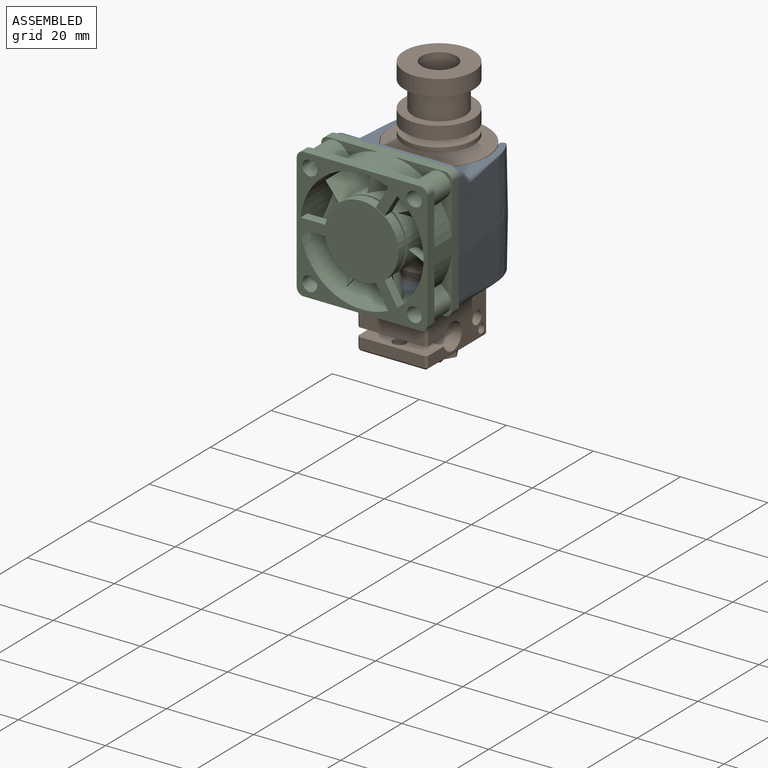
[diagram: assembled view]
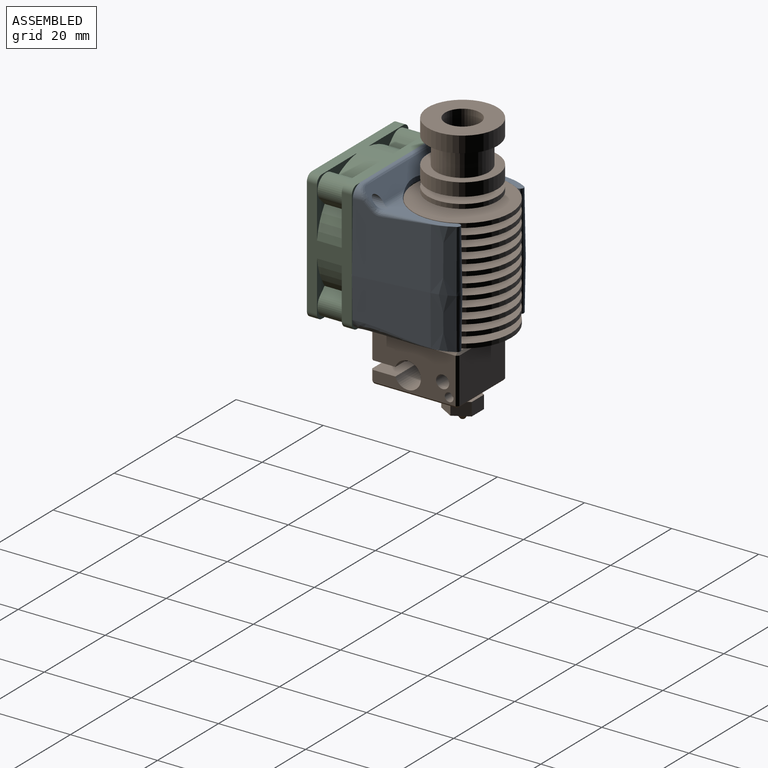
[diagram: assembled view, second angle]
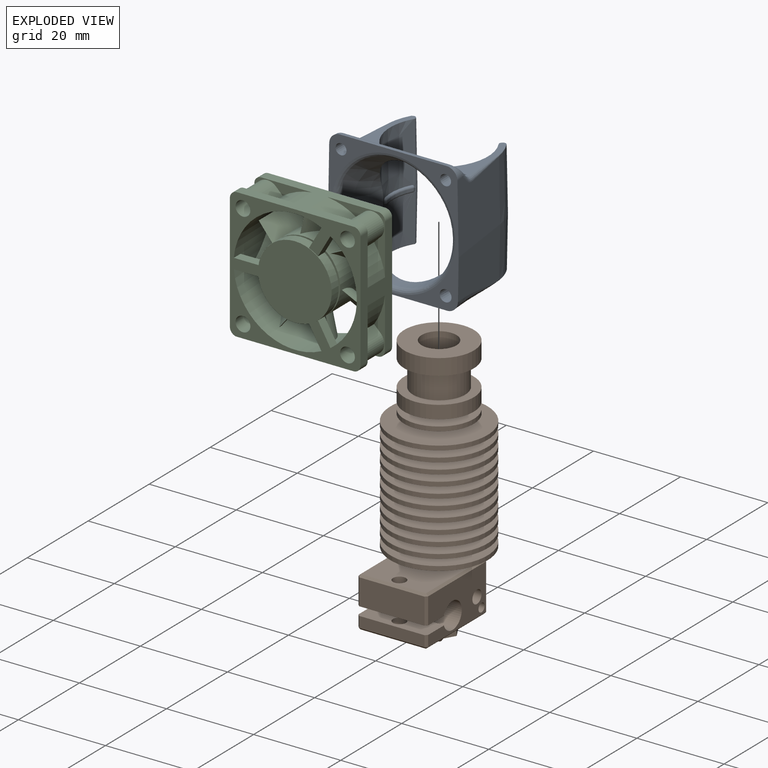
[diagram: exploded view]
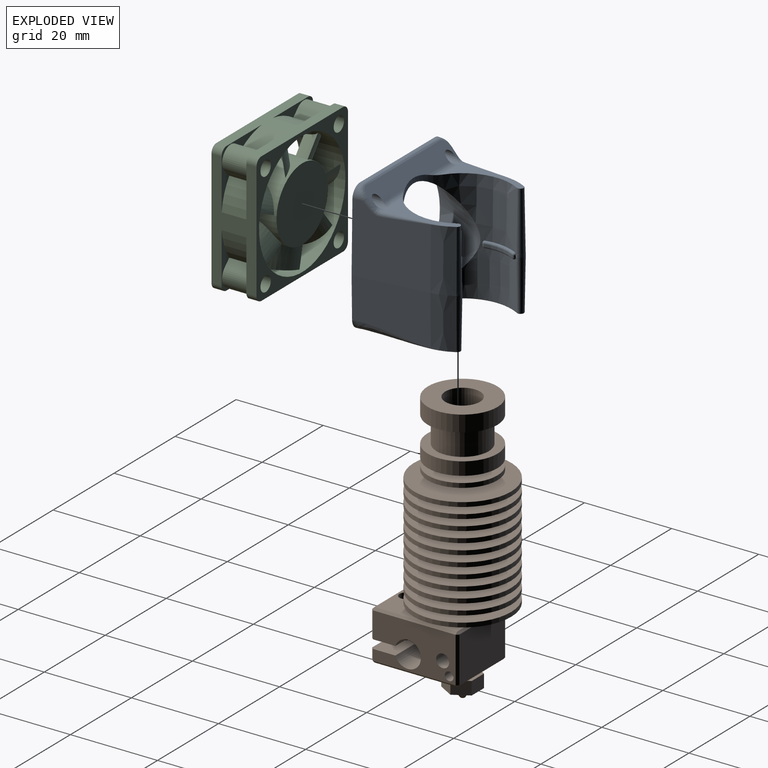
[diagram: exploded view, second angle]
ASSEMBLY  parts=3 mates=2
PART A: 92 faces, bbox 22.4x30.1x30.1 mm
  f0: sphere r=0.5mm, area 0.4mm2, adj f1,f3,f4
  f1: cylinder r=0.5mm len=0.5mm, axis (-0.26,0,0.97), area 0mm2, adj f0,f2,f7,f78
  f2: plane 7.43x1.25mm, normal (0,-1,0), area 0.1mm2, adj f1,f3,f13,f78
  f3: torus R=11mm, axis (0,-1,0), area 5.8mm2, adj f0,f2,f14,f63
  f4: cylinder r=0.5mm len=0.59mm, axis (0,-1,0), area 0.4mm2, adj f0,f5,f7,f63
  f5: sphere r=0.5mm, area 0.4mm2, adj f4,f6,f8
  f6: cylinder r=0.5mm len=0.5mm, axis (0.26,0,-0.97), area 0mm2, adj f5,f7,f62,f64
  f7: plane 0.5x0.02mm, normal (-0.97,0,-0.26), area 0mm2, adj f1,f4,f6,f64,f78
  f8: torus R=11mm, axis (0,-1,0), area 5.8mm2, adj f5,f10,f62,f63
  f9: cylinder r=0.5mm len=0.5mm, axis (-0.5,0,-0.87), area 0mm2, adj f10,f12,f62,f64
  f10: sphere r=0.5mm, area 0.4mm2, adj f8,f9,f11
  f11: cylinder r=0.5mm len=0.66mm, axis (0,-1,0), area 0.4mm2, adj f10,f12,f14,f63
  f12: plane 0.5x0.01mm, normal (0.87,0,-0.5), area 0mm2, adj f9,f11,f13,f76,f85
  f13: cylinder r=0.5mm len=0.5mm, axis (0.5,0,0.87), area 0mm2, adj f2,f12,f14,f78
  f14: sphere r=0.5mm, area 0.4mm2, adj f3,f11,f13
  f15: cylinder r=0.5mm len=0.5mm, axis (0.26,0,0.97), area 0mm2, adj f16,f19,f60,f64
  f16: sphere r=0.5mm, area 0.4mm2, adj f15,f17,f18
  f17: torus R=11mm, axis (0,-1,0), area 5.8mm2, adj f16,f24,f60,f61
  f18: cylinder r=0.5mm len=0.59mm, axis (0,-1,0), area 0.4mm2, adj f16,f19,f21,f61
  f19: plane 0.5x0.02mm, normal (-0.97,0,0.26), area 0mm2, adj f15,f18,f20,f64,f78
  f20: cylinder r=0.5mm len=0.5mm, axis (-0.26,0,-0.97), area 0mm2, adj f19,f21,f23,f78
  f21: sphere r=0.5mm, area 0.4mm2, adj f18,f20,f22
  f22: torus R=11mm, axis (0,-1,0), area 5.8mm2, adj f21,f23,f28,f61
  f23: plane 7.43x1.25mm, normal (0,-1,0), area 0.1mm2, adj f20,f22,f29,f78
  f24: sphere r=0.5mm, area 0.4mm2, adj f17,f25,f27
  f25: cylinder r=0.5mm len=0.5mm, axis (-0.5,0,0.87), area 0mm2, adj f24,f26,f60,f64
  f26: plane 0.5x0.01mm, normal (0.87,0,0.5), area 0mm2, adj f25,f27,f29,f50,f83
  f27: cylinder r=0.5mm len=0.66mm, axis (0,-1,0), area 0.4mm2, adj f24,f26,f28,f61
  f28: sphere r=0.5mm, area 0.4mm2, adj f22,f27,f29
  f29: cylinder r=0.5mm len=0.5mm, axis (0.5,0,-0.87), area 0mm2, adj f23,f26,f28,f78
  f30: bspline ~1.03x0.42mm, area 0mm2, adj f31,f50,f69
  f31: bspline ~4.8x1.62mm, area 0.7mm2, adj f30,f32,f49,f69
  f32: bspline ~10.77x1.56mm, area 9.5mm2, adj f31,f33,f48,f69
  f33: bspline ~2.09x1.5mm, area 2.6mm2, adj f32,f34,f48,f68
  f34: bspline ~2.32x2.23mm, area 3.4mm2, adj f33,f35,f48,f51
  f35: bspline ~2.46x2.35mm, area 3.6mm2, adj f34,f36,f47,f51
  f36: extruded ~24.26x0.71mm, area 19mm2, adj f35,f37,f46,f51
  f37: bspline ~2.46x2.34mm, area 3.6mm2, adj f36,f38,f45,f51
  f38: bspline ~2.32x2.23mm, area 3.4mm2, adj f37,f39,f44,f51
  f39: bspline ~2.09x1.47mm, area 2.6mm2, adj f38,f40,f44,f65
  f40: bspline ~10.77x1.56mm, area 9.5mm2, adj f39,f41,f44,f73
  f41: bspline ~4.8x1.62mm, area 0.7mm2, adj f40,f42,f43,f73
  f42: bspline ~1.03x0.42mm, area 0mm2, adj f41,f73,f76
  f43: cone r=13mm half-angle=1deg, axis (0,-1,0), area 72.5mm2, adj f41,f44,f76,f89
  f44: plane 16.63x15.79mm, normal (0.13,0.02,0.99), area 236mm2, adj f38,f39,f40,f43,f45,f80,f86
  f45: cylinder r=2.5mm len=2.76mm, axis (0.99,0,-0.13), area 4.5mm2, adj f37,f44,f46,f80
  f46: plane 24.41x0.59mm, normal (0,1,0), area 14.3mm2, adj f36,f45,f47,f80
  f47: cylinder r=2.5mm len=2.76mm, axis (-0.99,0,-0.13), area 4.5mm2, adj f35,f46,f48,f80
  f48: plane 16.63x15.79mm, normal (0.13,0.02,-0.99), area 236mm2, adj f32,f33,f34,f47,f49,f80,f81
  f49: cone r=13mm half-angle=1deg, axis (0,-1,0), area 72.5mm2, adj f31,f48,f50,f82
  f50: cone r=1mm half-angle=1deg, axis (0,-1,0), area 39.2mm2, adj f26,f30,f49,f64,f69,f83
  f51: plane 26.98x3.13mm, normal (0.71,0.71,0), area 103.4mm2, adj f34,f35,f36,f37,f38,f64,f65,f66
  f52: bspline ~16.92x2.78mm, area 38.7mm2, adj f53,f59,f80,f81
  f53: bspline ~4.82x1.7mm, area 1.1mm2, adj f52,f54,f59,f82
  f54: bspline ~1.54x1.3mm, area 0.4mm2, adj f53,f55,f59,f83
  f55: bspline ~23.08x17.12mm, area 7.3mm2, adj f54,f56,f59,f78
  f56: bspline ~1.54x1.3mm, area 0.4mm2, adj f55,f57,f59,f85
  f57: bspline ~4.82x1.7mm, area 0.9mm2, adj f56,f58,f59,f89
  f58: bspline ~16.92x2.78mm, area 37.1mm2, adj f57,f59,f80,f86
  f59: plane 25.11x21.71mm, normal (0,-1,0), area 186mm2, adj f52,f53,f54,f55,f56,f57,f58,f80
  f60: plane 7.43x1.25mm, normal (0,1,0), area 0.1mm2, adj f15,f17,f25,f64
  f61: cylinder r=10.5mm len=7.09mm, axis (0,-1,0), area 3.6mm2, adj f17,f18,f22,f27
  f62: plane 7.43x1.25mm, normal (0,1,0), area 0.1mm2, adj f6,f8,f9,f64
  f63: cylinder r=10.5mm len=7.09mm, axis (0,-1,0), area 3.6mm2, adj f3,f4,f8,f11
  f64: cone r=11.28mm half-angle=1deg, axis (0,1,0), area 366.4mm2, adj f6,f7,f9,f15,f19,f25,f50,f51
  f65: cylinder r=2mm len=1.41mm, axis (0,0,1), area 0.6mm2, adj f39,f51,f70,f73
  f66: cylinder r=2mm len=7.6mm, axis (0,0,1), area 9.4mm2, adj f51,f64,f70,f73
  f67: cylinder r=2mm len=7.6mm, axis (0,0,1), area 9.4mm2, adj f51,f64,f69,f74
  f68: cylinder r=2mm len=1.41mm, axis (0,0,1), area 0.6mm2, adj f33,f51,f69,f74
  f69: plane 15.93x6.6mm, normal (0,1,0), area 36.7mm2, adj f30,f31,f32,f50,f64,f67,f68,f74
  f70: cone r=1.25mm half-angle=1deg, axis (-1,0,0), area 31.8mm2, adj f51,f65,f66,f73,f77,f80
  f71: bspline ~28.59x17.93mm, area 49.8mm2, adj f72,f79,f80,f84
  f72: bspline ~3.21x1.31mm, area 3.9mm2, adj f71,f79,f80,f84
  f73: plane 15.93x6.6mm, normal (0,1,0), area 36.7mm2, adj f40,f41,f42,f64,f65,f66,f70,f76
  f74: cone r=1.25mm half-angle=1deg, axis (-1,0,0), area 31.8mm2, adj f51,f67,f68,f69,f75,f80
  f75: plane 1.12x0.15mm, normal (-1,0,0), area 0.1mm2, adj f69,f74
  f76: cone r=1mm half-angle=1deg, axis (0,-1,0), area 39.2mm2, adj f12,f42,f43,f64,f73,f85
  f77: plane 1.12x0.15mm, normal (-1,0,0), area 0.1mm2, adj f70,f73
  f78: cone r=11.1mm half-angle=1deg, axis (0,-1,0), area 322.5mm2, adj f1,f2,f7,f13,f19,f20,f23,f29
  f79: bspline ~27.81x11.6mm, area 55.3mm2, adj f71,f72,f80,f84
  f80: plane 30.13x30.13mm, normal (-1,0,0), area 228.1mm2, adj f44,f45,f46,f47,f48,f52,f58,f59
  f81: plane 16.63x11.51mm, normal (0.13,-0.02,-0.99), area 172mm2, adj f48,f52,f80,f82
  f82: cone r=13mm half-angle=1deg, axis (0,1,0), area 59.4mm2, adj f49,f53,f81,f83
  f83: cone r=1mm half-angle=1deg, axis (0,1,0), area 32.9mm2, adj f26,f50,f54,f78,f82
  f84: bspline ~26.56x26.52mm, area 535.8mm2, adj f64,f71,f72,f78,f79
  f85: cone r=1mm half-angle=1deg, axis (0,1,0), area 32.9mm2, adj f12,f56,f76,f78,f89
  f86: plane 16.63x11.57mm, normal (0.13,-0.02,0.99), area 173mm2, adj f44,f58,f80,f89
  f87: cone r=1.25mm half-angle=1deg, axis (-1,0,0), area 49.1mm2, adj f80,f90
  f88: cone r=1.25mm half-angle=1deg, axis (-1,0,0), area 45.2mm2, adj f80,f91
  f89: cone r=13mm half-angle=1deg, axis (0,1,0), area 59.6mm2, adj f43,f57,f85,f86
  f90: plane 2.5x2.5mm, normal (-1,0,0), area 4.9mm2, adj f87
  f91: plane 2.29x2.29mm, normal (-1,0,0), area 4.1mm2, adj f88
PART B: 111 faces, bbox 26.7x22.3x62.3 mm
  f0: plane 0.5x0.5mm, normal (-0.58,0.58,0.58), area 0.2mm2, adj f18,f20,f21
  f1: plane 0.5x0.5mm, normal (0.58,0.58,0.58), area 0.2mm2, adj f4,f17,f20
  f2: plane 0.5x0.5mm, normal (-0.58,-0.58,0.58), area 0.2mm2, adj f6,f18,f19
  f3: plane 0.5x0.5mm, normal (0.58,0.58,-0.58), area 0.2mm2, adj f4,f9,f16
  f4: plane 10.5x0.5mm, normal (0.71,0.71,0), area 7.4mm2, adj f1,f3,f27,f51
  f5: plane 0.5x0.5mm, normal (0.58,-0.58,0.58), area 0.2mm2, adj f6,f11,f17
  f6: plane 19x0.5mm, normal (0,-0.71,0.71), area 13.4mm2, adj f2,f5,f22,f25
  f7: plane 0.5x0.5mm, normal (-0.58,0.58,-0.58), area 0.2mm2, adj f8,f9,f14
  f8: plane 2.5x0.5mm, normal (-0.71,0.71,0), area 1.8mm2, adj f7,f50,f51,f52
  f9: plane 19x0.5mm, normal (0,0.71,-0.71), area 13.4mm2, adj f3,f7,f26,f51
  f10: plane 0.5x0.5mm, normal (0.58,-0.58,-0.58), area 0.2mm2, adj f11,f15,f16
  f11: plane 10.5x0.5mm, normal (0.71,-0.71,0), area 7.4mm2, adj f5,f10,f22,f27
  f12: plane 0.5x0.5mm, normal (-0.58,-0.58,-0.58), area 0.2mm2, adj f13,f14,f15
  f13: plane 2.5x0.5mm, normal (-0.71,-0.71,0), area 1.8mm2, adj f12,f22,f50,f52
  f14: plane 15x0.5mm, normal (-0.71,0,-0.71), area 10.6mm2, adj f7,f12,f26,f52
  f15: plane 19x0.5mm, normal (0,-0.71,-0.71), area 13.4mm2, adj f10,f12,f22,f26
  f16: plane 15x0.5mm, normal (0.71,0,-0.71), area 10.6mm2, adj f3,f10,f26,f27
  f17: plane 15x0.5mm, normal (0.71,0,0.71), area 10.6mm2, adj f1,f5,f25,f27
  f18: plane 15x0.5mm, normal (-0.71,0,0.71), area 10.6mm2, adj f0,f2,f23,f25
  f19: plane 6x0.5mm, normal (-0.71,-0.71,0), area 4.2mm2, adj f2,f22,f23,f24
  f20: plane 19x0.5mm, normal (0,0.71,0.71), area 13.4mm2, adj f0,f1,f25,f51
  f21: plane 6x0.5mm, normal (-0.71,0.71,0), area 4.2mm2, adj f0,f23,f24,f51
  f22: plane 19x10.5mm, normal (0,-1,0), area 150.5mm2, adj f6,f11,f13,f15,f19,f24,f43,f47
  f23: plane 15x6mm, normal (-1,0,0), area 90mm2, adj f18,f19,f21,f24
  f24: plane 16x5.65mm, normal (0,0,-1), area 83mm2, adj f19,f21,f22,f23,f42,f49,f51
  f25: plane 19x15mm, normal (0,0,1), area 271.8mm2, adj f6,f17,f18,f20,f42,f53
  f26: plane 19x15mm, normal (0,0,-1), area 258.3mm2, adj f9,f14,f15,f16,f40,f41
  f27: plane 15x10.5mm, normal (1,0,0), area 157.5mm2, adj f4,f11,f16,f17
  f28: cylinder r=0.2mm len=3mm, axis (0,0,1), area 3.8mm2, adj f29,f30
  f29: plane 0.4x0.4mm, normal (0,0,-1), area 0.1mm2, adj f28
  f30: plane 1x1mm, normal (0,0,-1), area 0.7mm2, adj f28,f31
  f31: cone r=1.9mm half-angle=35deg, axis (0,0,1), area 18.4mm2, adj f30,f39
  f32: plane 8.08x7mm, normal (0,0,1), area 22.8mm2, adj f33,f34,f35,f36,f37,f38,f40
  f33: plane 3.5x3mm, normal (-0.5,-0.87,0), area 12.1mm2, adj f32,f34,f38,f39
  f34: plane 3.5x3mm, normal (0.5,-0.87,0), area 12.1mm2, adj f32,f33,f35,f39
  f35: plane 4.04x3mm, normal (1,0,0), area 12.1mm2, adj f32,f34,f36,f39
  f36: plane 3.5x3mm, normal (0.5,0.87,0), area 12.1mm2, adj f32,f35,f37,f39
  f37: plane 3.5x3mm, normal (-0.5,0.87,0), area 12.1mm2, adj f32,f36,f38,f39
  f38: plane 4.04x3mm, normal (-1,0,0), area 12.1mm2, adj f32,f33,f37,f39
  f39: plane 8.08x7mm, normal (0,0,-1), area 31.1mm2, adj f31,f33,f34,f35,f36,f37,f38
  f40: cylinder r=2.5mm len=5mm, axis (0,0,-1), area 15.7mm2, adj f26,f32
  f41: cylinder r=1.5mm len=3mm, axis (0,0,-1), area 28.3mm2, adj f26,f50
  f42: cylinder r=1.5mm len=6.5mm, axis (0,0,-1), area 61.3mm2, adj f24,f25
  f43: cylinder r=1mm len=2mm, axis (0,1,0), area 12.6mm2, adj f22,f44
  f44: plane 2x2mm, normal (0,-1,0), area 1.3mm2, adj f43,f45
  f45: cylinder r=0.78mm len=2.45mm, axis (0,1,0), area 11.9mm2, adj f44,f46
  f46: plane 1.55x1.55mm, normal (0,-1,0), area 1.9mm2, adj f45
  f47: cylinder r=1.5mm len=3.45mm, axis (0,1,0), area 32.5mm2, adj f22,f48
  f48: plane 3x3mm, normal (0,-1,0), area 7.1mm2, adj f47
  f49: cylinder r=3.02mm len=16mm, axis (0,1,0), area 271.5mm2, adj f22,f24,f50,f51
  f50: plane 16x5.65mm, normal (0,0,1), area 83mm2, adj f8,f13,f22,f41,f49,f51,f52
  f51: plane 19x10.5mm, normal (0,1,0), area 160.7mm2, adj f4,f8,f9,f20,f21,f24,f49,f50
  f52: plane 15x2.5mm, normal (-1,0,0), area 37.5mm2, adj f8,f13,f14,f50
  f53: cylinder r=1.4mm len=2.8mm, axis (0,0,-1), area 18.5mm2, adj f25,f110
  f54: cylinder r=4mm len=8mm, axis (0,0,-1), area 163.4mm2, adj f55,f56
  f55: plane 8x8mm, normal (0,0,1), area 50.3mm2, adj f54
  f56: plane 16x16mm, normal (0,0,1), area 150.8mm2, adj f54,f57
  f57: cylinder r=8mm len=16mm, axis (0,0,-1), area 186mm2, adj f56,f58
  f58: plane 16x16mm, normal (0,0,-1), area 88mm2, adj f57,f59
  f59: cylinder r=6mm len=12mm, axis (0,0,-1), area 226.2mm2, adj f58,f60
  f60: plane 16x16mm, normal (0,0,1), area 88mm2, adj f59,f61
  f61: cylinder r=8mm len=16mm, axis (0,0,-1), area 150.8mm2, adj f60,f62
  f62: plane 16x16mm, normal (0,0,-1), area 137.4mm2, adj f61,f63
  f63: cylinder r=4.5mm len=9mm, axis (0,0,-1), area 42.4mm2, adj f62,f64
  f64: plane 16x16mm, normal (0,0,1), area 137.4mm2, adj f63,f65
  f65: cylinder r=8mm len=16mm, axis (0,0,-1), area 50.3mm2, adj f64,f66
  f66: plane 16x16mm, normal (0,0,-1), area 137.4mm2, adj f65,f67
  f67: cylinder r=4.5mm len=9mm, axis (0,0,-1), area 42.4mm2, adj f66,f68
  f68: plane 22.3x22.3mm, normal (0,0,1), area 327mm2, adj f67,f69
  f69: cylinder r=11.15mm len=22.3mm, axis (0,0,-1), area 70.1mm2, adj f68,f70
  f70: plane 22.3x22.3mm, normal (0,0,-1), area 319.7mm2, adj f69,f71
  f71: cylinder r=4.75mm len=9.5mm, axis (0,0,-1), area 44.8mm2, adj f70,f72
  f72: plane 22.3x22.3mm, normal (0,0,1), area 319.7mm2, adj f71,f73
  f73: cylinder r=11.15mm len=22.3mm, axis (0,0,-1), area 70.1mm2, adj f72,f74
  f74: plane 22.3x22.3mm, normal (0,0,-1), area 312mm2, adj f73,f75
  f75: cylinder r=5mm len=10mm, axis (0,0,-1), area 47.1mm2, adj f74,f76
  f76: plane 22.3x22.3mm, normal (0,0,1), area 312mm2, adj f75,f77
  f77: cylinder r=11.15mm len=22.3mm, axis (0,0,-1), area 70.1mm2, adj f76,f78
  f78: plane 22.3x22.3mm, normal (0,0,-1), area 304mm2, adj f77,f79
  f79: cylinder r=5.25mm len=10.5mm, axis (0,0,-1), area 49.5mm2, adj f78,f80
  f80: plane 22.3x22.3mm, normal (0,0,1), area 304mm2, adj f79,f81
  f81: cylinder r=11.15mm len=22.3mm, axis (0,0,-1), area 70.1mm2, adj f80,f82
  f82: plane 22.3x22.3mm, normal (0,0,-1), area 295.5mm2, adj f81,f83
  f83: cylinder r=5.5mm len=11mm, axis (0,0,-1), area 51.8mm2, adj f82,f84
  f84: plane 22.3x22.3mm, normal (0,0,1), area 295.5mm2, adj f83,f85
  f85: cylinder r=11.15mm len=22.3mm, axis (0,0,-1), area 70.1mm2, adj f84,f86
  f86: plane 22.3x22.3mm, normal (0,0,-1), area 286.7mm2, adj f85,f87
  f87: cylinder r=5.75mm len=11.5mm, axis (0,0,-1), area 54.2mm2, adj f86,f88
  f88: plane 22.3x22.3mm, normal (0,0,1), area 286.7mm2, adj f87,f89
  f89: cylinder r=11.15mm len=22.3mm, axis (0,0,-1), area 70.1mm2, adj f88,f90
  f90: plane 22.3x22.3mm, normal (0,0,-1), area 277.5mm2, adj f89,f91
  f91: cylinder r=6mm len=12mm, axis (0,0,-1), area 56.5mm2, adj f90,f92
  f92: plane 22.3x22.3mm, normal (0,0,1), area 277.5mm2, adj f91,f93
  f93: cylinder r=11.15mm len=22.3mm, axis (0,0,-1), area 70.1mm2, adj f92,f94
  f94: plane 22.3x22.3mm, normal (0,0,-1), area 267.9mm2, adj f93,f95
  f95: cylinder r=6.25mm len=12.5mm, axis (0,0,-1), area 58.9mm2, adj f94,f96
  f96: plane 22.3x22.3mm, normal (0,0,1), area 267.9mm2, adj f95,f97
  f97: cylinder r=11.15mm len=22.3mm, axis (0,0,-1), area 70.1mm2, adj f96,f98
  f98: plane 22.3x22.3mm, normal (0,0,-1), area 257.8mm2, adj f97,f99
  f99: cylinder r=6.5mm len=13mm, axis (0,0,-1), area 61.3mm2, adj f98,f100
  f100: plane 22.3x22.3mm, normal (0,0,1), area 257.8mm2, adj f99,f101
  f101: cylinder r=11.15mm len=22.3mm, axis (0,0,-1), area 70.1mm2, adj f100,f102
  f102: plane 22.3x22.3mm, normal (0,0,-1), area 247.4mm2, adj f101,f103
  f103: cylinder r=6.75mm len=13.5mm, axis (0,0,-1), area 63.6mm2, adj f102,f104
  f104: plane 22.3x22.3mm, normal (0,0,1), area 247.4mm2, adj f103,f105
  f105: cylinder r=11.15mm len=22.3mm, axis (0,0,-1), area 70.1mm2, adj f104,f106
  f106: plane 22.3x22.3mm, normal (0,0,-1), area 236.6mm2, adj f105,f107
  f107: cylinder r=7mm len=14mm, axis (0,0,-1), area 66mm2, adj f106,f108
  f108: plane 22.3x22.3mm, normal (0,0,1), area 236.6mm2, adj f107,f109
  f109: cylinder r=11.15mm len=22.3mm, axis (0,0,-1), area 70.1mm2, adj f108,f110
  f110: plane 22.3x22.3mm, normal (0,0,-1), area 384.4mm2, adj f53,f109
PART C: 81 faces, bbox 30x30x10.4 mm
  f0: plane 16.9x16.9mm, normal (0,0,1), area 224.3mm2, adj f30
  f1: cylinder r=6.27mm len=8.12mm, axis (0.78,-0.62,0), area 53.7mm2, adj f2,f3,f23
  f2: cylinder r=17.02mm len=8.12mm, axis (0.78,-0.62,0), area 49mm2, adj f1,f3,f23
  f3: plane 6.44x4.69mm, normal (-0.78,0.62,0), area 7.5mm2, adj f1,f2
  f4: cylinder r=6.27mm len=7.08mm, axis (0.97,0.22,0), area 53.7mm2, adj f5,f6,f23
  f5: cylinder r=17.02mm len=7.07mm, axis (0.97,0.22,0), area 49mm2, adj f4,f6,f23
  f6: plane 6.44x5.85mm, normal (-0.97,-0.22,0), area 7.5mm2, adj f4,f5
  f7: cylinder r=6.27mm len=7.79mm, axis (0.43,0.9,0), area 53.7mm2, adj f8,f9,f23
  f8: cylinder r=17.02mm len=7.79mm, axis (0.43,0.9,0), area 49mm2, adj f7,f9,f23
  f9: plane 6.44x5.41mm, normal (-0.43,-0.9,0), area 7.5mm2, adj f7,f8
  f10: cylinder r=6.27mm len=7.79mm, axis (-0.43,0.9,0), area 53.7mm2, adj f11,f12,f23
  f11: cylinder r=17.02mm len=7.79mm, axis (-0.43,0.9,0), area 49mm2, adj f10,f12,f23
  f12: plane 6.44x5.41mm, normal (0.43,-0.9,0), area 7.5mm2, adj f10,f11
  f13: cylinder r=6.27mm len=7.08mm, axis (-0.97,0.22,0), area 52mm2, adj f14,f15,f23
  f14: cylinder r=17.02mm len=7.07mm, axis (-0.97,0.22,0), area 47.5mm2, adj f13,f15,f23
  f15: plane 6.44x5.85mm, normal (0.97,-0.22,0), area 7.5mm2, adj f13,f14
  f16: cylinder r=6.27mm len=8.12mm, axis (-0.78,-0.62,0), area 53.7mm2, adj f17,f18,f23
  f17: cylinder r=17.02mm len=8.12mm, axis (-0.78,-0.62,0), area 49mm2, adj f16,f18,f23
  f18: plane 6.44x4.69mm, normal (0.78,0.62,0), area 7.5mm2, adj f16,f17
  f19: cylinder r=6.27mm len=6.44mm, axis (0,-1,0), area 53.7mm2, adj f20,f21,f23
  f20: cylinder r=17.02mm len=6.44mm, axis (0,-1,0), area 49mm2, adj f19,f21,f23
  f21: plane 6.44x6mm, normal (0,1,0), area 7.5mm2, adj f19,f20
  f22: plane 16.9x16.9mm, normal (0,0,1), area 28.3mm2, adj f23,f25
  f23: cylinder r=8.45mm len=16.9mm, axis (0,0,-1), area 332.2mm2, adj f1,f2,f4,f5,f7,f8,f10,f11
  f24: plane 16.9x16.9mm, normal (0,0,-1), area 224.3mm2, adj f23
  f25: cylinder r=7.9mm len=15.8mm, axis (0,0,-1), area 24.8mm2, adj f22,f33
  f26: plane 4.97x2.87mm, normal (-0.5,-0.87,0), area 12.6mm2, adj f30,f33,f41,f68
  f27: plane 4.97x2.87mm, normal (0.5,0.87,0), area 12.6mm2, adj f30,f33,f41,f68
  f28: plane 4.97x2.87mm, normal (-0.5,0.87,0), area 12.6mm2, adj f30,f33,f41,f68
  f29: plane 4.97x2.87mm, normal (0.5,-0.87,0), area 12.6mm2, adj f30,f33,f41,f68
  f30: cylinder r=8.45mm len=16.9mm, axis (0,0,-1), area 106.4mm2, adj f0,f26,f27,f28,f29,f31,f32,f33
  f31: plane 5.73x2.2mm, normal (1,0,0), area 12.6mm2, adj f30,f33,f41,f68
  f32: plane 5.73x2.2mm, normal (-1,0,0), area 12.6mm2, adj f30,f33,f41,f68
  f33: plane 25.61x22.6mm, normal (0,0,-1), area 69mm2, adj f25,f26,f27,f28,f29,f30,f31,f32
  f34: plane 13.13x13.13mm, normal (0,0,-1), area 21.8mm2, adj f39,f44,f57,f69,f70,f71,f73,f74
  f35: plane 13.13x13.13mm, normal (0,0,-1), area 21.8mm2, adj f40,f47,f53,f54,f55,f57,f58,f75
  f36: plane 13.13x13.13mm, normal (0,0,-1), area 21.8mm2, adj f38,f44,f52,f63,f64,f65,f66,f67
  f37: cylinder r=1.6mm len=2.32mm, axis (0,0,1), area 5.8mm2, adj f41,f42,f47,f52
  f38: cylinder r=1.6mm len=2.32mm, axis (0,0,1), area 5.8mm2, adj f36,f41,f44,f52
  f39: cylinder r=1.6mm len=2.32mm, axis (0,0,1), area 5.8mm2, adj f34,f41,f44,f57
  f40: cylinder r=1.6mm len=2.32mm, axis (0,0,1), area 5.8mm2, adj f35,f41,f47,f57
  f41: plane 30x30mm, normal (0,0,1), area 273.2mm2, adj f26,f27,f28,f29,f30,f31,f32,f37
  f42: plane 13.13x13.13mm, normal (0,0,-1), area 21.8mm2, adj f37,f47,f52,f59,f60,f61,f62,f76
  f43: cylinder r=1.6mm len=2.32mm, axis (0,0,1), area 5.8mm2, adj f44,f45,f57,f72
  f44: plane 26.8x10.34mm, normal (-1,0,0), area 145.6mm2, adj f34,f36,f38,f39,f41,f43,f45,f50
  f45: plane 30x30mm, normal (0,0,-1), area 232.5mm2, adj f43,f44,f46,f47,f48,f50,f52,f57
  f46: cylinder r=1.6mm len=2.32mm, axis (0,0,1), area 5.8mm2, adj f45,f47,f56,f57
  f47: plane 26.8x10.34mm, normal (1,0,0), area 145.6mm2, adj f35,f37,f40,f41,f42,f45,f46,f48
  f48: cylinder r=1.6mm len=2.32mm, axis (0,0,1), area 5.8mm2, adj f45,f47,f49,f52
  f49: plane 13.13x13.13mm, normal (0,0,1), area 21.8mm2, adj f47,f48,f52,f59,f60,f61,f62,f76
  f50: cylinder r=1.6mm len=2.32mm, axis (0,0,1), area 5.8mm2, adj f44,f45,f51,f52
  f51: plane 13.13x13.13mm, normal (0,0,1), area 21.8mm2, adj f44,f50,f52,f63,f64,f65,f66,f67
  f52: plane 26.8x10.34mm, normal (0,-1,0), area 145.6mm2, adj f36,f37,f38,f41,f42,f45,f48,f49
  f53: cylinder r=2.82mm len=5.7mm, axis (0,0,1), area 50.5mm2, adj f35,f54,f55,f56
  f54: plane 5.7x1.5mm, normal (0.71,-0.71,0), area 12.1mm2, adj f35,f53,f56,f58
  f55: plane 5.7x1.5mm, normal (-0.71,0.71,0), area 12.1mm2, adj f35,f53,f56,f75
  f56: plane 13.13x13.13mm, normal (0,0,1), area 21.8mm2, adj f46,f47,f53,f54,f55,f57,f58,f75
  f57: plane 26.8x10.34mm, normal (0,1,0), area 145.6mm2, adj f34,f35,f39,f40,f41,f43,f45,f46
  f58: cylinder r=15.12mm len=6.64mm, axis (0,0,1), area 40.8mm2, adj f35,f47,f54,f56
  f59: cylinder r=2.82mm len=5.7mm, axis (0,0,1), area 50.5mm2, adj f42,f49,f60,f61
  f60: plane 5.7x1.5mm, normal (-0.71,-0.71,0), area 12.1mm2, adj f42,f49,f59,f62
  f61: plane 5.7x1.5mm, normal (0.71,0.71,0), area 12.1mm2, adj f42,f49,f59,f76
  f62: cylinder r=15.12mm len=6.64mm, axis (0,0,1), area 40.8mm2, adj f42,f49,f52,f60
  f63: cylinder r=2.82mm len=5.7mm, axis (0,0,1), area 50.5mm2, adj f36,f51,f64,f65
  f64: plane 5.7x1.5mm, normal (-0.71,0.71,0), area 12.1mm2, adj f36,f51,f63,f67
  f65: plane 5.7x1.5mm, normal (0.71,-0.71,0), area 12.1mm2, adj f36,f51,f63,f66
  f66: cylinder r=15.12mm len=6.64mm, axis (0,0,1), area 40.8mm2, adj f36,f51,f52,f65
  f67: cylinder r=15.12mm len=6.64mm, axis (0,0,1), area 40.8mm2, adj f36,f44,f51,f64
  f68: cylinder r=14.15mm len=28.3mm, axis (0,0,1), area 903.6mm2, adj f26,f27,f28,f29,f31,f32,f33,f41
  f69: cylinder r=2.82mm len=5.7mm, axis (0,0,1), area 50.5mm2, adj f34,f70,f71,f72
  f70: plane 5.7x1.5mm, normal (0.71,0.71,0), area 12.1mm2, adj f34,f69,f72,f73
  f71: plane 5.7x1.5mm, normal (-0.71,-0.71,0), area 12.1mm2, adj f34,f69,f72,f74
  f72: plane 13.13x13.13mm, normal (0,0,1), area 21.8mm2, adj f43,f44,f57,f69,f70,f71,f73,f74
  f73: cylinder r=15.12mm len=6.64mm, axis (0,0,1), area 40.8mm2, adj f34,f57,f70,f72
  f74: cylinder r=15.12mm len=6.64mm, axis (0,0,1), area 40.8mm2, adj f34,f44,f71,f72
  f75: cylinder r=15.12mm len=6.64mm, axis (0,0,1), area 40.8mm2, adj f35,f55,f56,f57
  f76: cylinder r=15.12mm len=6.64mm, axis (0,0,1), area 40.8mm2, adj f42,f47,f49,f61
  f77: cylinder r=1.7mm len=10.34mm, axis (0,0,1), area 110.4mm2, adj f41,f45
  f78: cylinder r=1.7mm len=10.34mm, axis (0,0,1), area 110.4mm2, adj f41,f45
  f79: cylinder r=1.7mm len=10.34mm, axis (0,0,1), area 110.4mm2, adj f41,f45
  f80: cylinder r=1.7mm len=10.34mm, axis (0,0,1), area 110.4mm2, adj f41,f45
PLACE A rot(axis=(0.58,0.58,0.58),120deg) t=(-34,-27.74,-59.42)mm
PLACE B rot(axis=(0,0,1),90deg) t=(-34,-27.74,-38.02)mm
PLACE C rot(axis=(0.58,-0.58,0.58),120deg) t=(-34,-42.67,-44.42)mm
MATE cylindrical A.f64 <-> B.f53  axis (0,0,1) through (-34,-27.74,-39.87)mm
MATE cylindrical A.f70 <-> C.f59  axis (0,-1,0) through (-22,-42.74,-32.42)mm
